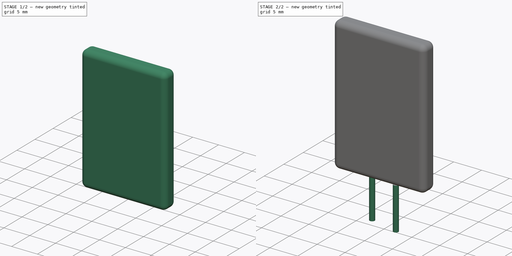
[diagram: build sequence overview — one tinted view per stage of 2, left to right]
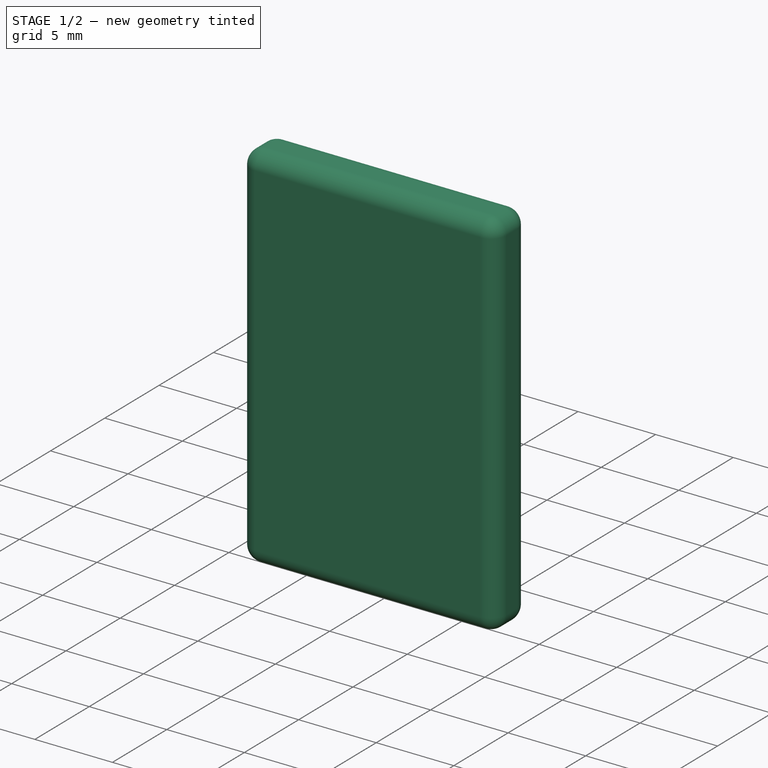
[diagram: stage 1 of 2 — iso view after this stage's code; geometry added in this stage tinted green]
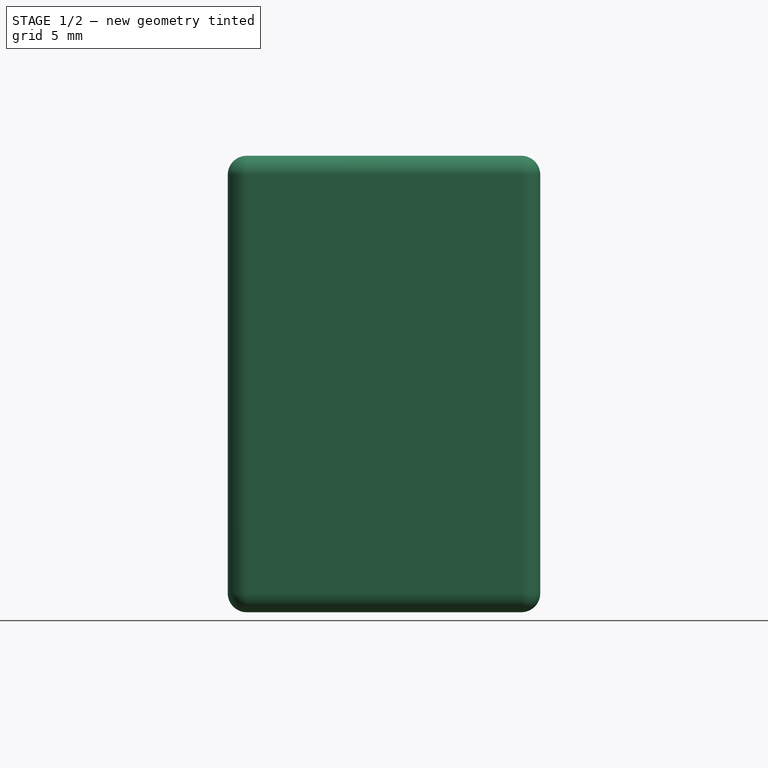
[diagram: stage 1 of 2 — front view after this stage's code; geometry added in this stage tinted green]
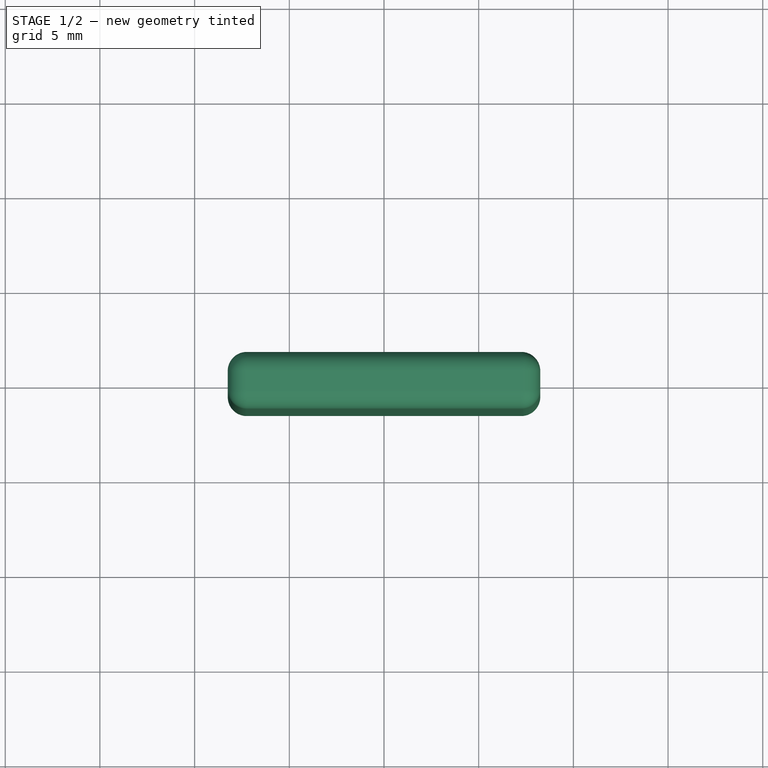
[diagram: stage 1 of 2 — top view after this stage's code; geometry added in this stage tinted green]
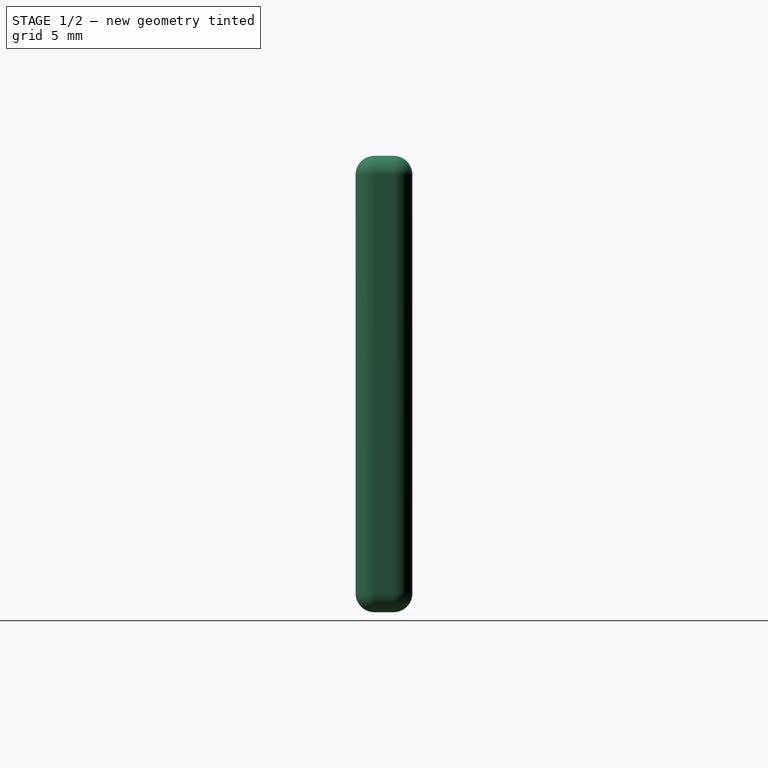
[diagram: stage 1 of 2 — right view after this stage's code; geometry added in this stage tinted green]
FCSTD DOCUMENT  (FreeCAD 0.16R6712 (Git))
Label: RG10A-16
License: All rights reserved
LicenseURL: http://en.wikipedia.org/wiki/All_rights_reserved
objects: Sketcher::SketchObject×2, PartDesign::Pad×2, PartDesign::Fillet×1, Part::Compound×1
note: 8 computed .brp shape members not serialized (recipe doc carries the construction recipe); baked Part::Feature solids carry a one-line shape summary decoded from their .brp

FEATURE [Sketcher::SketchObject] Sketch001
  sketch-geometry (4):
    g0: LineSegment StartX=-8.25 StartY=1.5 StartZ=0 EndX=8.25 EndY=1.5 EndZ=0
    g1: LineSegment StartX=8.25 StartY=1.5 StartZ=0 EndX=8.25 EndY=-1.5 EndZ=0
    g2: LineSegment StartX=8.25 StartY=-1.5 StartZ=0 EndX=-8.25 EndY=-1.5 EndZ=0
    g3: LineSegment StartX=-8.25 StartY=-1.5 StartZ=0 EndX=-8.25 EndY=1.5 EndZ=0
  constraints (12):
    c: Coincident(g0,g1)
    c: Coincident(g1,g2)
    c: Coincident(g2,g3)
    c: Coincident(g3,g0)
    c: Horizontal(g0)
    c: Horizontal(g2)
    c: Vertical(g1)
    c: Vertical(g3)
    c: Symmetric(g1,g2,g-2)
    c: Symmetric(g0,g1,g-1)
    c: DistanceX(g0,g0) = 16.5
    c: DistanceY(g1,g1) = 3
FEATURE [PartDesign::Pad] Pad001  label="korpus"
  Length = 24.1
  Length2 = 100
  Sketch = -> Sketch001
  Type = 0
FEATURE [PartDesign::Fillet] Fillet  label="korpus001"
  Base = -> Pad001 [Edge10,Edge12,Edge4,Edge5,Edge2,Edge8,Edge6,Edge9,Edge7,Edge3,Edge1,Edge11]
  Radius = 1
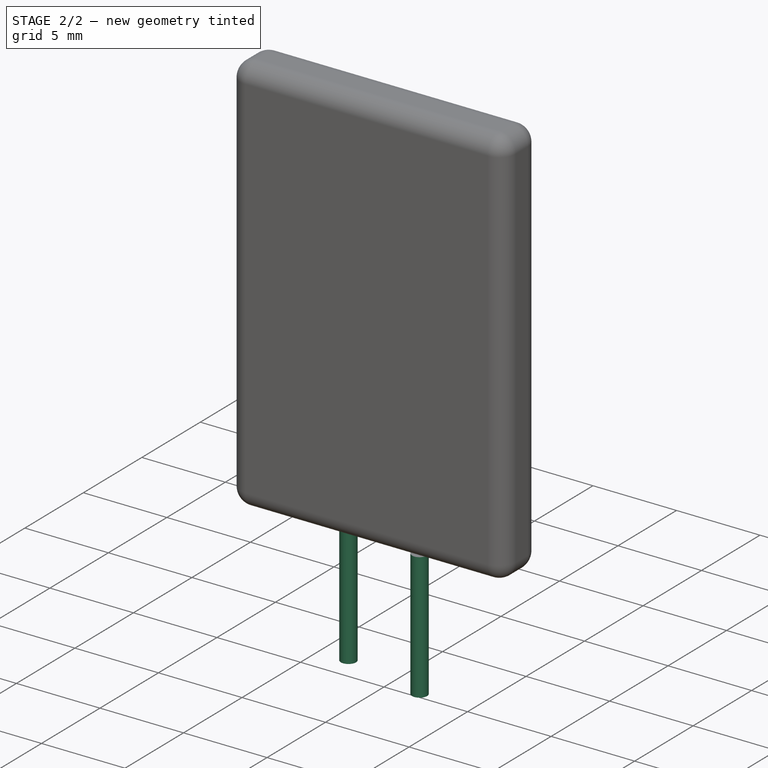
[diagram: stage 2 of 2 — iso view after this stage's code; geometry added in this stage tinted green]
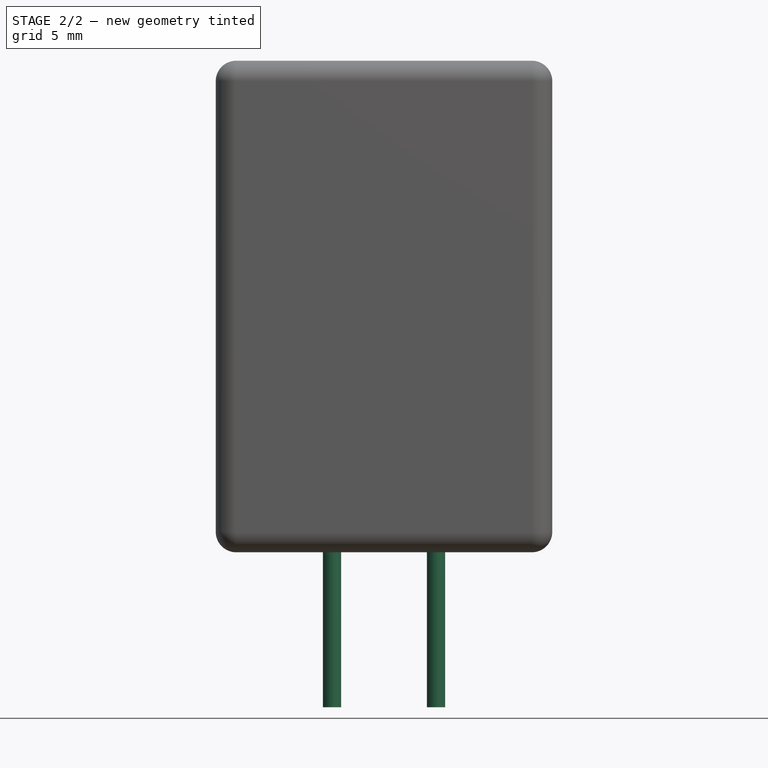
[diagram: stage 2 of 2 — front view after this stage's code; geometry added in this stage tinted green]
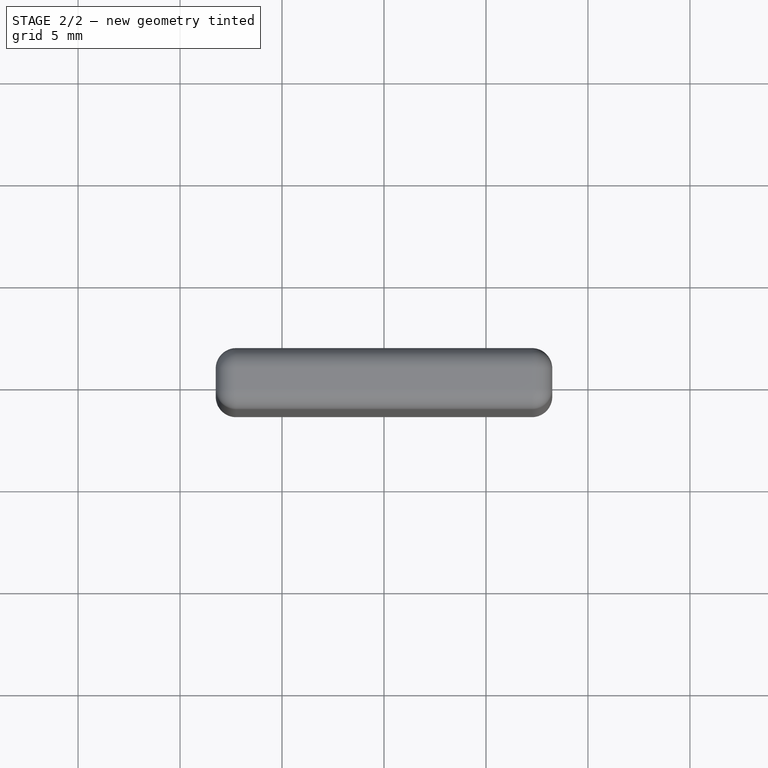
[diagram: stage 2 of 2 — top view after this stage's code; geometry added in this stage tinted green]
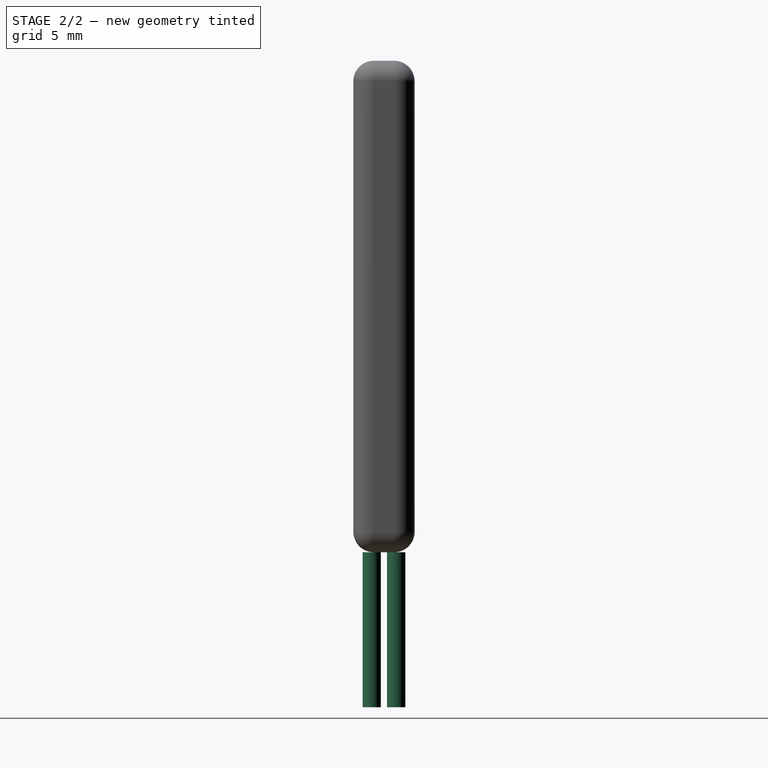
[diagram: stage 2 of 2 — right view after this stage's code; geometry added in this stage tinted green]
FEATURE [Sketcher::SketchObject] Sketch
  sketch-geometry (2):
    g0: Circle CenterX=2.55 CenterY=-0.6 CenterZ=0 NormalX=0 NormalY=0 NormalZ=1 Radius=0.45
    g1: Circle CenterX=-2.55 CenterY=0.6 CenterZ=0 NormalX=0 NormalY=0 NormalZ=1 Radius=0.45
  constraints (6):
    c: DistanceX(g1,g0) = 5.1
    c: Equal(g0,g1)
    c: Radius(g1) = 0.45
    c: DistanceY(g0,g1) = 1.2
    c: DistanceX(g-1,g0) = 2.55
    c: DistanceY(g0,g-1) = 0.6
FEATURE [PartDesign::Pad] Pad  label="piny"
  Length = 7.6
  Length2 = 7.6
  Reversed = true
  Sketch = -> Sketch
  Type = 0
FEATURE [Part::Compound] Compound  label="RG10A-16"
  Links = -> [Fillet,Pad]
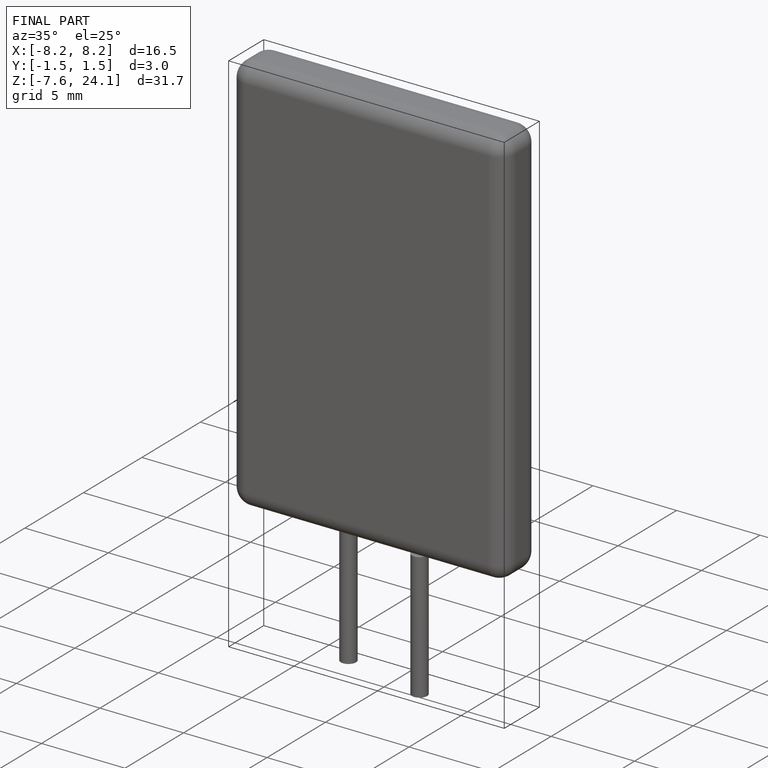
[diagram: finished part — iso view with bounding-box wireframe]
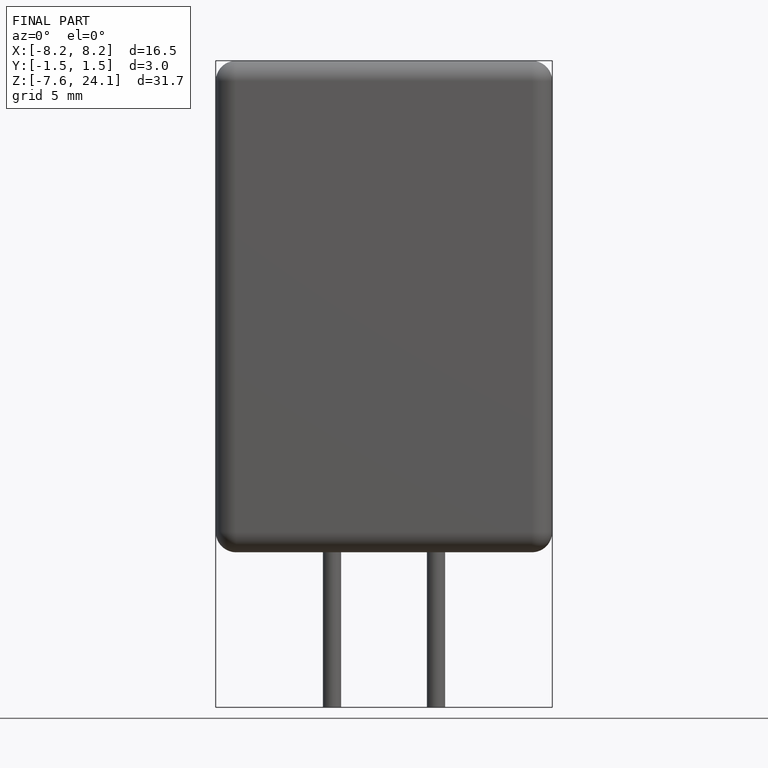
[diagram: finished part — front view with bounding-box wireframe]
